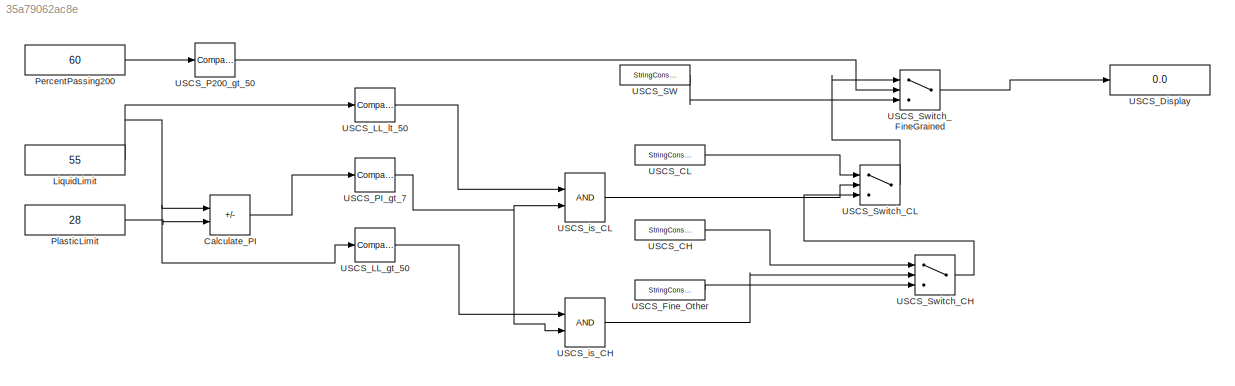
MODEL slx_35a79062ac8e
KIND model
CONFIG AbsTol = auto
CONFIG EnableMultiTasking = off
CONFIG FixedStep = auto
CONFIG MaxStep = auto
CONFIG MinStep = auto
CONFIG RelTol = 1e-3
CONFIG SampleTimeConstraint = Unconstrained
CONFIG Solver = VariableStepAuto
CONFIG SolverName = VariableStepAuto
CONFIG StartTime = 0.0
CONFIG StopTime = 10.0
BLOCK [Sum] Calculate_PI
  IconShape = rectangular
  Inputs = +-
  Ports = [2, 1]
BLOCK [Constant] LiquidLimit
  Value = 55
BLOCK [Constant] PercentPassing200
  Value = 60
BLOCK [Constant] PlasticLimit
  Value = 28
BLOCK [StringConstant] USCS_CH
  String = 'CH'
BLOCK [StringConstant] USCS_CL
  String = 'CL'
BLOCK [Display] USCS_Display
  Decimation = 1
  Ports = [1]
BLOCK [StringConstant] USCS_Fine_Other
  String = 'Fine (Other)'
BLOCK [Reference] USCS_LL_gt_50  REF=simulink/Logic and Bit
Operations/Compare
To Constant
  Ports = [1, 1]
  SourceBlock = simulink/Logic and Bit\nOperations/Compare\nTo Constant
  SourceProductBaseCode = SL
  SourceType = Compare To Constant
BLOCK [Reference] USCS_LL_lt_50  REF=simulink/Logic and Bit
Operations/Compare
To Constant
  Ports = [1, 1]
  SourceBlock = simulink/Logic and Bit\nOperations/Compare\nTo Constant
  SourceProductBaseCode = SL
  SourceType = Compare To Constant
BLOCK [Reference] USCS_P200_gt_50  REF=simulink/Logic and Bit
Operations/Compare
To Constant
  Ports = [1, 1]
  SourceBlock = simulink/Logic and Bit\nOperations/Compare\nTo Constant
  SourceProductBaseCode = SL
  SourceType = Compare To Constant
BLOCK [Reference] USCS_PI_gt_7  REF=simulink/Logic and Bit
Operations/Compare
To Constant
  Ports = [1, 1]
  SourceBlock = simulink/Logic and Bit\nOperations/Compare\nTo Constant
  SourceProductBaseCode = SL
  SourceType = Compare To Constant
BLOCK [StringConstant] USCS_SW
  String = 'SW (Coarse)'
BLOCK [Switch] USCS_Switch_CH
  Criteria = u2 > Threshold
  InputSameDT = off
  SaturateOnIntegerOverflow = off
BLOCK [Switch] USCS_Switch_CL
  Criteria = u2 > Threshold
  InputSameDT = off
  SaturateOnIntegerOverflow = off
BLOCK [Switch] USCS_Switch_FineGrained
  Criteria = u2 > Threshold
  InputSameDT = off
  SaturateOnIntegerOverflow = off
BLOCK [Logic] USCS_is_CH
  AllPortsSameDT = off
  OutDataTypeStr = boolean
  Ports = [2, 1]
BLOCK [Logic] USCS_is_CL
  AllPortsSameDT = off
  OutDataTypeStr = boolean
  Ports = [2, 1]
LINE Calculate_PI:1 -> USCS_PI_gt_7:1
NET LiquidLimit:1 -> Calculate_PI:1, USCS_LL_gt_50:1, USCS_LL_lt_50:1
LINE PercentPassing200:1 -> USCS_P200_gt_50:1
LINE PlasticLimit:1 -> Calculate_PI:2
LINE USCS_CH:1 -> USCS_Switch_CH:1
LINE USCS_CL:1 -> USCS_Switch_CL:1
LINE USCS_Fine_Other:1 -> USCS_Switch_CH:3
LINE USCS_LL_gt_50:1 -> USCS_is_CH:1
LINE USCS_LL_lt_50:1 -> USCS_is_CL:1
LINE USCS_P200_gt_50:1 -> USCS_Switch_FineGrained:2
NET USCS_PI_gt_7:1 -> USCS_is_CH:2, USCS_is_CL:2
LINE USCS_SW:1 -> USCS_Switch_FineGrained:3
LINE USCS_Switch_CH:1 -> USCS_Switch_CL:3
LINE USCS_Switch_CL:1 -> USCS_Switch_FineGrained:1
LINE USCS_Switch_FineGrained:1 -> USCS_Display:1
LINE USCS_is_CH:1 -> USCS_Switch_CH:2
LINE USCS_is_CL:1 -> USCS_Switch_CL:2
note: NET lines group one-source signal fan-out (src -> all destinations, sorted); 1:1 wires keep LINE
